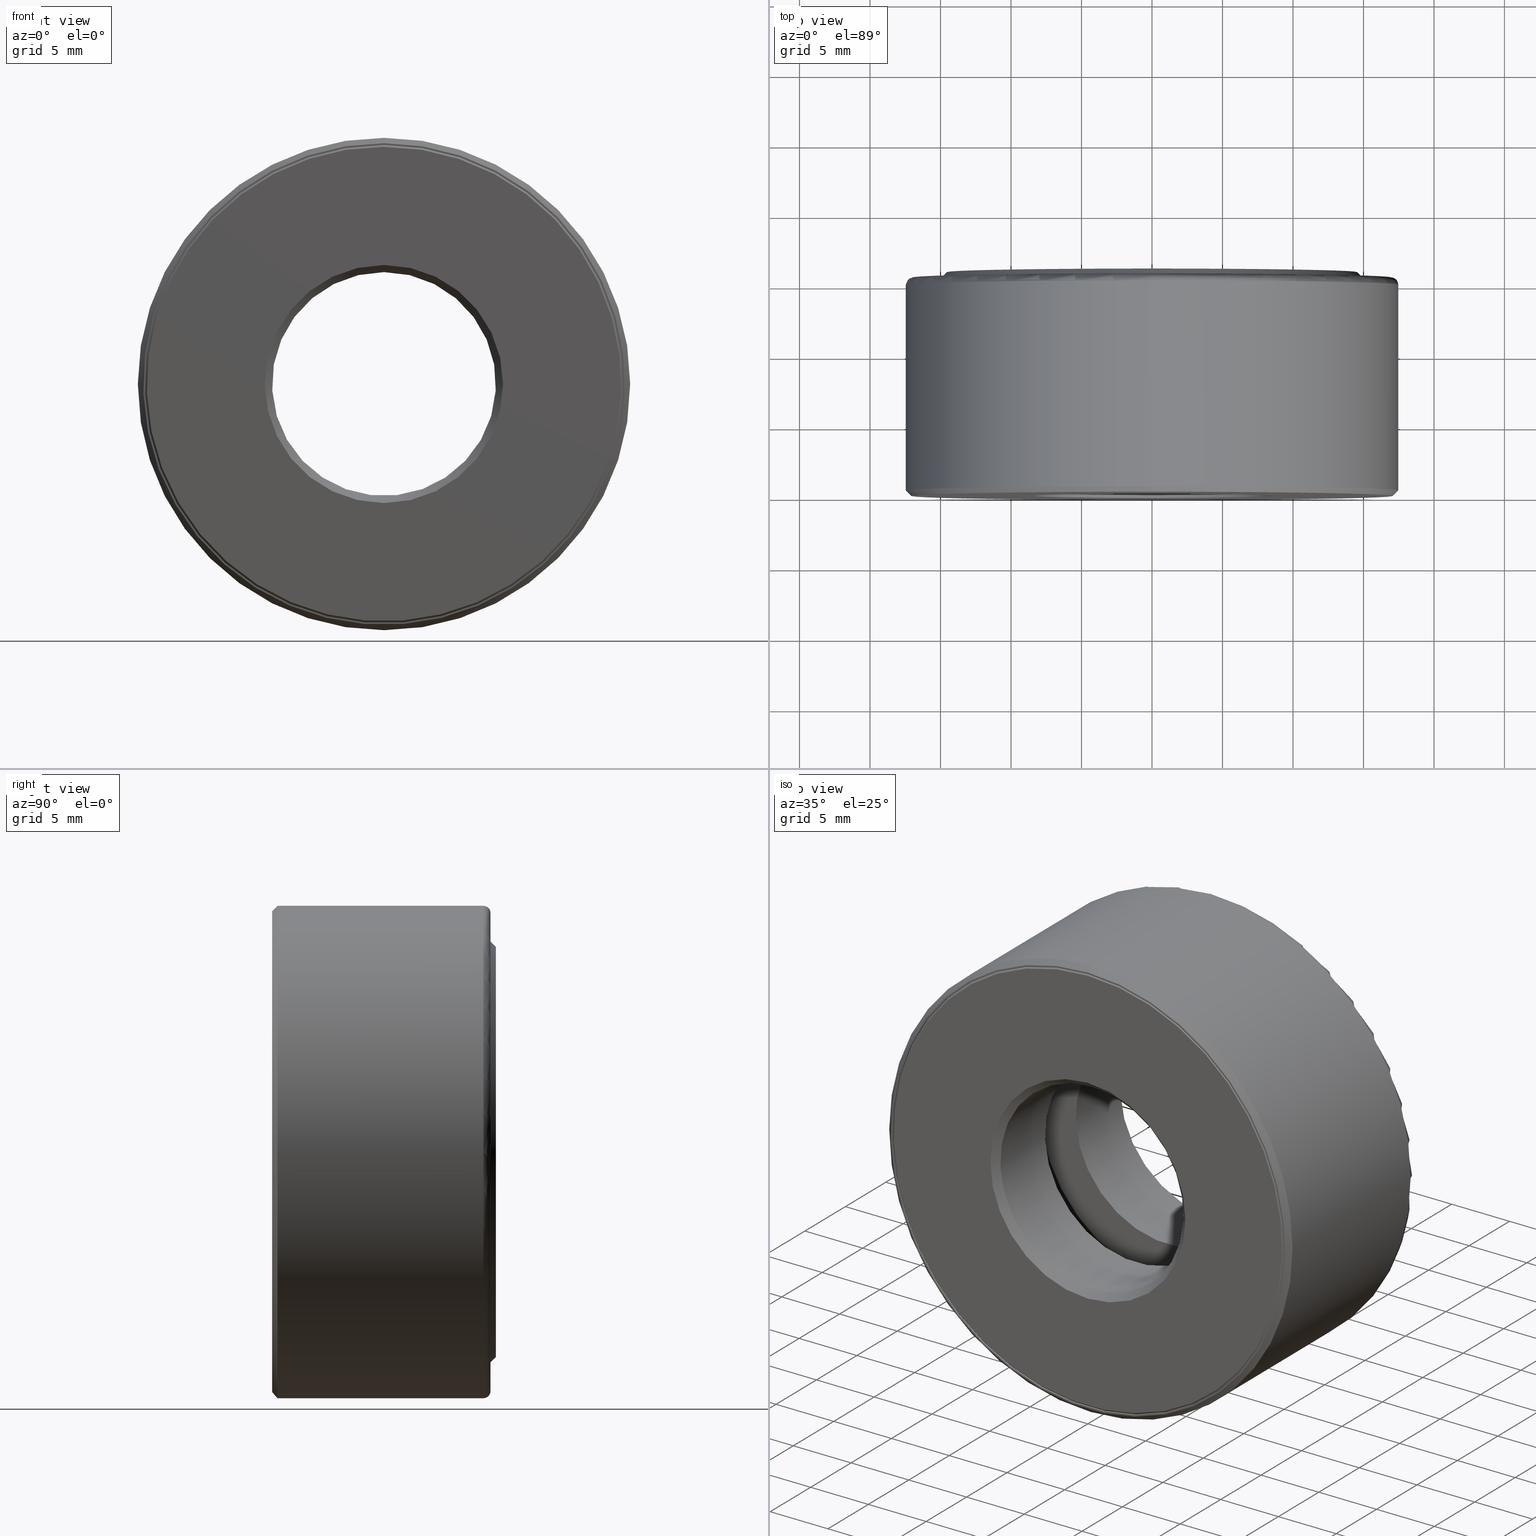
[diagram: canonical four-view strip — front | top / right | iso, engineering-drawing reading convention]
A machine part, canonical four-view strip (front | top / right | iso — engineering-drawing reading convention). The complete STEP part file that produces these views, byte-faithful:
ISO-10303-21;
HEADER;
FILE_DESCRIPTION (( 'STEP AP203' ),
    '1' );
FILE_NAME ('T-100-2.step',
    '2016-06-29T18:27:11',
    ( '' ),
    ( '' ),
    'SwSTEP 2.0',
    'SolidWorks 2016',
    '' );
FILE_SCHEMA (( 'CONFIG_CONTROL_DESIGN' ));
ENDSEC;

DATA;
#1 = VERTEX_POINT ( 'NONE', #308 ) ;
#2 = ADVANCED_FACE ( 'NONE', ( #119, #223 ), #59, .F. ) ;
#3 = DIRECTION ( 'NONE',  ( -0.0000000000000000000, 1.000000000000000000, -0.0000000000000000000 ) ) ;
#4 = CARTESIAN_POINT ( 'NONE',  ( 0.0000000000000000000, 0.01999999999999999000, 0.0000000000000000000 ) ) ;
#5 = UNCERTAINTY_MEASURE_WITH_UNIT (LENGTH_MEASURE( 1.000000000000000100E-005 ), #116, 'distance_accuracy_value', 'NONE');
#6 = EDGE_LOOP ( 'NONE', ( #175 ) ) ;
#7 = VERTEX_POINT ( 'NONE', #209 ) ;
#8 = EDGE_CURVE ( 'NONE', #401, #401, #448, .T. ) ;
#9 = VERTEX_POINT ( 'NONE', #81 ) ;
#10 = AXIS2_PLACEMENT_3D ( 'NONE', #549, #592, #593 ) ;
#11 = CARTESIAN_POINT ( 'NONE',  ( 0.0000000000000000000, 0.5900000000000000800, 0.0000000000000000000 ) ) ;
#12 = FACE_OUTER_BOUND ( 'NONE', #6, .T. ) ;
#13 = EDGE_LOOP ( 'NONE', ( #309 ) ) ;
#14 = CIRCLE ( 'NONE', #50, 0.6334999999999999500 ) ;
#15 = CALENDAR_DATE ( 2016, 29, 6 ) ;
#16 = AXIS2_PLACEMENT_3D ( 'NONE', #98, #3, #516 ) ;
#17 = CARTESIAN_POINT ( 'NONE',  ( 0.0000000000000000000, 0.6049999999999999800, 0.3125000000000000000 ) ) ;
#18 = DIRECTION ( 'NONE',  ( 0.0000000000000000000, 0.0000000000000000000, 1.000000000000000000 ) ) ;
#19 = FACE_BOUND ( 'NONE', #545, .T. ) ;
#20 = VERTEX_POINT ( 'NONE', #249 ) ;
#21 = DIRECTION ( 'NONE',  ( 0.0000000000000000000, 0.0000000000000000000, 1.000000000000000000 ) ) ;
#22 = COORDINATED_UNIVERSAL_TIME_OFFSET ( 5, 0, .BEHIND. ) ;
#23 = APPROVAL_ROLE ( '' ) ;
#24 = MANIFOLD_SOLID_BREP ( 'BALLS[2]', #94 ) ;
#25 = CARTESIAN_POINT ( 'NONE',  ( 0.0000000000000000000, 0.2374999999999999300, 0.6334999999999999500 ) ) ;
#26 = AXIS2_PLACEMENT_3D ( 'NONE', #525, #435, #351 ) ;
#27 = EDGE_LOOP ( 'NONE', ( #425 ) ) ;
#28 = APPLICATION_PROTOCOL_DEFINITION ( 'international standard', 'config_control_design', 1994, #533 ) ;
#29 = ORIENTED_EDGE ( 'NONE', *, *, #480, .F. ) ;
#30 = FACE_OUTER_BOUND ( 'NONE', #576, .T. ) ;
#31 = PERSON_AND_ORGANIZATION ( #263, #218 ) ;
#32 = CARTESIAN_POINT ( 'NONE',  ( 0.0000000000000000000, 0.5370000000000002500, 0.0000000000000000000 ) ) ;
#33 = MANIFOLD_SOLID_BREP ( 'BALLS[3]', #230 ) ;
#34 = DIRECTION ( 'NONE',  ( 0.0000000000000000000, 0.0000000000000000000, 1.000000000000000000 ) ) ;
#35 = ADVANCED_FACE ( 'NONE', ( #352, #19 ), #317, .F. ) ;
#36 = FACE_OUTER_BOUND ( 'NONE', #285, .T. ) ;
#37 = ORIENTED_EDGE ( 'NONE', *, *, #69, .T. ) ;
#38 = VERTEX_POINT ( 'NONE', #167 ) ;
#39 = DIRECTION ( 'NONE',  ( -0.0000000000000000000, 1.000000000000000000, -0.0000000000000000000 ) ) ;
#40 = AXIS2_PLACEMENT_3D ( 'NONE', #47, #185, #332 ) ;
#41 = ADVANCED_FACE ( 'NONE', ( #441, #102 ), #43, .T. ) ;
#42 = CC_DESIGN_APPROVAL ( #339, ( #356 ) ) ;
#43 = CONICAL_SURFACE ( 'NONE', #599, 0.6724999999999999900, 0.7853981633974466100 ) ;
#44 = DIRECTION ( 'NONE',  ( 0.0000000000000000000, -1.000000000000000000, 0.0000000000000000000 ) ) ;
#45 = EDGE_LOOP ( 'NONE', ( #203 ) ) ;
#46 = SPHERICAL_SURFACE ( 'NONE', #26, 0.1250000000000000300 ) ;
#47 = CARTESIAN_POINT ( 'NONE',  ( 0.0000000000000000000, 0.0000000000000000000, 0.0000000000000000000 ) ) ;
#48 = DIRECTION ( 'NONE',  ( -0.0000000000000000000, 1.000000000000000000, 0.0000000000000000000 ) ) ;
#49 = ADVANCED_FACE ( 'NONE', ( #12, #496 ), #583, .T. ) ;
#50 = AXIS2_PLACEMENT_3D ( 'NONE', #235, #194, #468 ) ;
#51 = DIRECTION ( 'NONE',  ( 0.0000000000000000000, 0.0000000000000000000, 1.000000000000000000 ) ) ;
#52 = ORIENTED_EDGE ( 'NONE', *, *, #473, .F. ) ;
#53 = DIRECTION ( 'NONE',  ( -3.491481338843132600E-015, 0.0000000000000000000, -1.000000000000000000 ) ) ;
#54 = CIRCLE ( 'NONE', #483, 0.5725000000000001200 ) ;
#55 = PERSON_AND_ORGANIZATION ( #263, #218 ) ;
#56 = DIRECTION ( 'NONE',  ( 0.0000000000000000000, 0.0000000000000000000, 1.000000000000000000 ) ) ;
#57 = CARTESIAN_POINT ( 'NONE',  ( 1.862705294272811400E-015, 0.3124999999999999400, 0.5334999999999999700 ) ) ;
#58 = DIRECTION ( 'NONE',  ( 0.0000000000000000000, 0.0000000000000000000, 1.000000000000000000 ) ) ;
#59 = CYLINDRICAL_SURFACE ( 'NONE', #446, 0.3125000000000000000 ) ;
#60 = EDGE_LOOP ( 'NONE', ( #237 ) ) ;
#61 = CONICAL_SURFACE ( 'NONE', #297, 0.6624999999999999800, 0.7853981633974499400 ) ;
#62 = AXIS2_PLACEMENT_3D ( 'NONE', #384, #470, #342 ) ;
#63 = DIRECTION ( 'NONE',  ( 0.0000000000000000000, 0.0000000000000000000, 1.000000000000000000 ) ) ;
#64 = AXIS2_PLACEMENT_3D ( 'NONE', #32, #453, #452 ) ;
#65 = DIRECTION ( 'NONE',  ( -0.0000000000000000000, 1.000000000000000000, -0.0000000000000000000 ) ) ;
#66 = FACE_BOUND ( 'NONE', #113, .T. ) ;
#67 = ORIENTED_EDGE ( 'NONE', *, *, #466, .F. ) ;
#68 = CARTESIAN_POINT ( 'NONE',  ( 0.0000000000000000000, 0.0000000000000000000, 0.0000000000000000000 ) ) ;
#69 = EDGE_CURVE ( 'NONE', #444, #444, #207, .T. ) ;
#70 = FACE_OUTER_BOUND ( 'NONE', #346, .T. ) ;
#71 = CARTESIAN_POINT ( 'NONE',  ( 0.0000000000000000000, 0.5899999999999999700, 0.6875000000000000000 ) ) ;
#72 = APPROVAL_STATUS ( 'not_yet_approved' ) ;
#73 = FACE_BOUND ( 'NONE', #487, .T. ) ;
#74 = EDGE_LOOP ( 'NONE', ( #417 ) ) ;
#75 = PERSON_AND_ORGANIZATION_ROLE ( 'classification_officer' ) ;
#76 = FACE_OUTER_BOUND ( 'NONE', #120, .T. ) ;
#77 = EDGE_CURVE ( 'NONE', #145, #145, #195, .T. ) ;
#78 = APPROVAL_STATUS ( 'not_yet_approved' ) ;
#79 = DIRECTION ( 'NONE',  ( -0.0000000000000000000, 1.000000000000000000, -0.0000000000000000000 ) ) ;
#80 = MANIFOLD_SOLID_BREP ( 'BALLS[1]', #262 ) ;
#81 = CARTESIAN_POINT ( 'NONE',  ( 0.0000000000000000000, 0.3874999999999999600, 0.6604999999999999800 ) ) ;
#82 = AXIS2_PLACEMENT_3D ( 'NONE', #459, #601, #550 ) ;
#83 = FACE_OUTER_BOUND ( 'NONE', #74, .T. ) ;
#84 = ORIENTED_EDGE ( 'NONE', *, *, #69, .F. ) ;
#85 = FACE_OUTER_BOUND ( 'NONE', #415, .T. ) ;
#86 = DIRECTION ( 'NONE',  ( 0.0000000000000000000, -1.000000000000000000, 0.0000000000000000000 ) ) ;
#87 = ORIENTED_EDGE ( 'NONE', *, *, #403, .T. ) ;
#88 = ORIENTED_EDGE ( 'NONE', *, *, #463, .T. ) ;
#89 = FACE_OUTER_BOUND ( 'NONE', #482, .T. ) ;
#90 = EDGE_CURVE ( 'NONE', #484, #484, #360, .T. ) ;
#91 = CARTESIAN_POINT ( 'NONE',  ( 3.557093741750341400E-016, 0.6250000000000000000, 0.0000000000000000000 ) ) ;
#92 = DIRECTION ( 'NONE',  ( -0.0000000000000000000, 1.000000000000000000, -0.0000000000000000000 ) ) ;
#93 = ADVANCED_FACE ( 'NONE', ( #325, #388 ), #588, .F. ) ;
#94 = CLOSED_SHELL ( 'NONE', ( #556 ) ) ;
#95 = EDGE_LOOP ( 'NONE', ( #455 ) ) ;
#96 = FACE_BOUND ( 'NONE', #215, .T. ) ;
#97 = LENGTH_MEASURE_WITH_UNIT ( LENGTH_MEASURE( 0.02539999999999999900 ), #161 );
#98 = CARTESIAN_POINT ( 'NONE',  ( 0.0000000000000000000, 0.3124999999999999400, 0.0000000000000000000 ) ) ;
#99 = EDGE_CURVE ( 'NONE', #272, #272, #553, .T. ) ;
#100 = DIRECTION ( 'NONE',  ( -0.0000000000000000000, 1.000000000000000000, -0.0000000000000000000 ) ) ;
#101 = DIRECTION ( 'NONE',  ( 0.0000000000000000000, 0.0000000000000000000, 1.000000000000000000 ) ) ;
#102 = FACE_BOUND ( 'NONE', #27, .T. ) ;
#103 = AXIS2_PLACEMENT_3D ( 'NONE', #555, #92, #413 ) ;
#104 = CC_DESIGN_APPROVAL ( #457, ( #428 ) ) ;
#105 = DIRECTION ( 'NONE',  ( 0.0000000000000000000, 0.0000000000000000000, 1.000000000000000000 ) ) ;
#106 = EDGE_LOOP ( 'NONE', ( #520 ) ) ;
#107 = ORIENTED_EDGE ( 'NONE', *, *, #289, .T. ) ;
#108 = FACE_OUTER_BOUND ( 'NONE', #507, .T. ) ;
#109 = AXIS2_PLACEMENT_3D ( 'NONE', #180, #373, #501 ) ;
#110 = DIRECTION ( 'NONE',  ( 0.0000000000000000000, 0.0000000000000000000, -1.000000000000000000 ) ) ;
#111 = DIRECTION ( 'NONE',  ( -0.0000000000000000000, 1.000000000000000000, -0.0000000000000000000 ) ) ;
#112 = CC_DESIGN_PERSON_AND_ORGANIZATION_ASSIGNMENT ( #532, #445, ( #428 ) ) ;
#113 = EDGE_LOOP ( 'NONE', ( #568 ) ) ;
#114 = VERTEX_POINT ( 'NONE', #71 ) ;
#115 = LOCAL_TIME ( 14, 27, 11.00000000000000000, #410 ) ;
#116 =( CONVERSION_BASED_UNIT ( 'INCH', #97 ) LENGTH_UNIT ( ) NAMED_UNIT ( #420 ) );
#117 = AXIS2_PLACEMENT_3D ( 'NONE', #546, #86, #315 ) ;
#118 = CARTESIAN_POINT ( 'NONE',  ( 0.0000000000000000000, 3.414809992080329000E-017, 0.3325000000000000200 ) ) ;
#119 = FACE_OUTER_BOUND ( 'NONE', #340, .T. ) ;
#120 = EDGE_LOOP ( 'NONE', ( #208 ) ) ;
#121 = FACE_OUTER_BOUND ( 'NONE', #190, .T. ) ;
#122 = CARTESIAN_POINT ( 'NONE',  ( 0.0000000000000000000, 0.0000000000000000000, 0.0000000000000000000 ) ) ;
#123 = APPROVAL_PERSON_ORGANIZATION ( #139, #457, #357 ) ;
#124 = CARTESIAN_POINT ( 'NONE',  ( 0.0000000000000000000, 0.0000000000000000000, 0.0000000000000000000 ) ) ;
#125 = EDGE_LOOP ( 'NONE', ( #594 ) ) ;
#126 = DIRECTION ( 'NONE',  ( -0.0000000000000000000, 1.000000000000000000, -0.0000000000000000000 ) ) ;
#127 = VERTEX_POINT ( 'NONE', #314 ) ;
#128 = VERTEX_POINT ( 'NONE', #440 ) ;
#129 = DIRECTION ( 'NONE',  ( 0.0000000000000000000, 0.0000000000000000000, 1.000000000000000000 ) ) ;
#130 = ADVANCED_FACE ( 'NONE', ( #73, #462 ), #177, .T. ) ;
#131 = AXIS2_PLACEMENT_3D ( 'NONE', #141, #44, #605 ) ;
#132 = CARTESIAN_POINT ( 'NONE',  ( 0.0000000000000000000, 0.5900000000000000800, 0.0000000000000000000 ) ) ;
#133 = ADVANCED_FACE ( 'NONE', ( #299, #83 ), #447, .F. ) ;
#134 = CARTESIAN_POINT ( 'NONE',  ( 0.0000000000000000000, 0.5900000000000000800, 0.0000000000000000000 ) ) ;
#135 = ORIENTED_EDGE ( 'NONE', *, *, #491, .T. ) ;
#136 = ORIENTED_EDGE ( 'NONE', *, *, #8, .F. ) ;
#137 = CARTESIAN_POINT ( 'NONE',  ( 0.0000000000000000000, 0.0000000000000000000, 0.0000000000000000000 ) ) ;
#138 = CYLINDRICAL_SURFACE ( 'NONE', #268, 0.6075000000000000400 ) ;
#139 = PERSON_AND_ORGANIZATION ( #263, #218 ) ;
#140 = MANIFOLD_SOLID_BREP ( 'Revolve2[1]', #475 ) ;
#141 = CARTESIAN_POINT ( 'NONE',  ( 0.0000000000000000000, 0.6100000000000001000, 0.0000000000000000000 ) ) ;
#142 = AXIS2_PLACEMENT_3D ( 'NONE', #4, #238, #101 ) ;
#143 = CARTESIAN_POINT ( 'NONE',  ( 0.0000000000000000000, 0.3874999999999999600, 0.0000000000000000000 ) ) ;
#144 = ORIENTED_EDGE ( 'NONE', *, *, #99, .F. ) ;
#145 = VERTEX_POINT ( 'NONE', #578 ) ;
#146 = COORDINATED_UNIVERSAL_TIME_OFFSET ( 5, 0, .BEHIND. ) ;
#147 = CARTESIAN_POINT ( 'NONE',  ( 0.0000000000000000000, -4.867964418107738000E-017, 0.0000000000000000000 ) ) ;
#148 = EDGE_LOOP ( 'NONE', ( #214 ) ) ;
#149 = AXIS2_PLACEMENT_3D ( 'NONE', #557, #499, #598 ) ;
#150 = ORIENTED_EDGE ( 'NONE', *, *, #77, .T. ) ;
#151 = CARTESIAN_POINT ( 'NONE',  ( 0.0000000000000000000, -4.908789363615472800E-017, 0.6724999999999999900 ) ) ;
#152 = FACE_OUTER_BOUND ( 'NONE', #376, .T. ) ;
#153 = DIRECTION ( 'NONE',  ( -0.0000000000000000000, 1.000000000000000000, -0.0000000000000000000 ) ) ;
#154 = DIRECTION ( 'NONE',  ( 0.0000000000000000000, 0.0000000000000000000, 1.000000000000000000 ) ) ;
#155 = CARTESIAN_POINT ( 'NONE',  ( 0.0000000000000000000, 0.6250000000000000000, 0.0000000000000000000 ) ) ;
#156 = FACE_OUTER_BOUND ( 'NONE', #537, .T. ) ;
#157 = CC_DESIGN_PERSON_AND_ORGANIZATION_ASSIGNMENT ( #295, #259, ( #359 ) ) ;
#158 = ORIENTED_EDGE ( 'NONE', *, *, #466, .T. ) ;
#159 = VERTEX_POINT ( 'NONE', #258 ) ;
#160 =( NAMED_UNIT ( * ) SI_UNIT ( $, .STERADIAN. ) SOLID_ANGLE_UNIT ( ) );
#161 =( LENGTH_UNIT ( ) NAMED_UNIT ( * ) SI_UNIT ( $, .METRE. ) );
#162 = EDGE_CURVE ( 'NONE', #368, #368, #543, .T. ) ;
#163 = AXIS2_PLACEMENT_3D ( 'NONE', #567, #562, #379 ) ;
#164 = PERSON_AND_ORGANIZATION_ROLE ( 'creator' ) ;
#165 = EDGE_CURVE ( 'NONE', #20, #20, #283, .T. ) ;
#166 = EDGE_LOOP ( 'NONE', ( #196 ) ) ;
#167 = CARTESIAN_POINT ( 'NONE',  ( 0.0000000000000000000, 0.3874999999999999600, 0.6334999999999999500 ) ) ;
#168 = EDGE_LOOP ( 'NONE', ( #87 ) ) ;
#169 = CIRCLE ( 'NONE', #515, 0.6604999999999999800 ) ;
#170 = APPROVAL_DATE_TIME ( #597, #339 ) ;
#171 = DIRECTION ( 'NONE',  ( 0.0000000000000000000, -1.000000000000000000, 0.0000000000000000000 ) ) ;
#172 = AXIS2_PLACEMENT_3D ( 'NONE', #122, #79, #129 ) ;
#173 = DIRECTION ( 'NONE',  ( -0.0000000000000000000, 1.000000000000000000, -0.0000000000000000000 ) ) ;
#174 = FACE_BOUND ( 'NONE', #406, .T. ) ;
#175 = ORIENTED_EDGE ( 'NONE', *, *, #8, .T. ) ;
#176 = FACE_OUTER_BOUND ( 'NONE', #184, .T. ) ;
#177 = PLANE ( 'NONE',  #560 ) ;
#178 = CALENDAR_DATE ( 2016, 29, 6 ) ;
#179 = AXIS2_PLACEMENT_3D ( 'NONE', #343, #481, #110 ) ;
#180 = CARTESIAN_POINT ( 'NONE',  ( -0.5334999999999999700, 0.3124999999999999400, 0.0000000000000000000 ) ) ;
#181 = ADVANCED_FACE ( 'NONE', ( #529, #36 ), #511, .T. ) ;
#182 = EDGE_LOOP ( 'NONE', ( #144 ) ) ;
#183 = DIRECTION ( 'NONE',  ( -0.0000000000000000000, 1.000000000000000000, 0.0000000000000000000 ) ) ;
#184 = EDGE_LOOP ( 'NONE', ( #67 ) ) ;
#185 = DIRECTION ( 'NONE',  ( -0.0000000000000000000, 1.000000000000000000, -0.0000000000000000000 ) ) ;
#186 = AXIS2_PLACEMENT_3D ( 'NONE', #312, #126, #212 ) ;
#187 = DIRECTION ( 'NONE',  ( 0.0000000000000000000, 0.0000000000000000000, 1.000000000000000000 ) ) ;
#188 = DIRECTION ( 'NONE',  ( 0.0000000000000000000, 0.0000000000000000000, 1.000000000000000000 ) ) ;
#189 = FACE_OUTER_BOUND ( 'NONE', #392, .T. ) ;
#190 = EDGE_LOOP ( 'NONE', ( #328 ) ) ;
#191 = CIRCLE ( 'NONE', #365, 0.3325000000000000200 ) ;
#192 = PERSON_AND_ORGANIZATION ( #263, #218 ) ;
#193 = AXIS2_PLACEMENT_3D ( 'NONE', #380, #100, #51 ) ;
#194 = DIRECTION ( 'NONE',  ( -0.0000000000000000000, 1.000000000000000000, -0.0000000000000000000 ) ) ;
#195 = CIRCLE ( 'NONE', #396, 0.4334999999999998900 ) ;
#196 = ORIENTED_EDGE ( 'NONE', *, *, #165, .T. ) ;
#197 = FACE_OUTER_BOUND ( 'NONE', #106, .T. ) ;
#198 = DIRECTION ( 'NONE',  ( 0.0000000000000000000, -1.000000000000000000, 0.0000000000000000000 ) ) ;
#199 = CC_DESIGN_DATE_AND_TIME_ASSIGNMENT ( #500, #303, ( #228 ) ) ;
#200 = CARTESIAN_POINT ( 'NONE',  ( 0.0000000000000000000, 0.3874999999999999600, 0.0000000000000000000 ) ) ;
#201 = EDGE_LOOP ( 'NONE', ( #29 ) ) ;
#202 = AXIS2_PLACEMENT_3D ( 'NONE', #467, #288, #510 ) ;
#203 = ORIENTED_EDGE ( 'NONE', *, *, #544, .F. ) ;
#204 = FACE_OUTER_BOUND ( 'NONE', #201, .T. ) ;
#205 = DIRECTION ( 'NONE',  ( 0.0000000000000000000, 0.0000000000000000000, 1.000000000000000000 ) ) ;
#206 = AXIS2_PLACEMENT_3D ( 'NONE', #57, #284, #53 ) ;
#207 = CIRCLE ( 'NONE', #589, 0.6674999999999998700 ) ;
#208 = ORIENTED_EDGE ( 'NONE', *, *, #473, .T. ) ;
#209 = CARTESIAN_POINT ( 'NONE',  ( 0.0000000000000000000, 0.01999999999999999000, 0.3124999999999999400 ) ) ;
#210 = FACE_BOUND ( 'NONE', #575, .T. ) ;
#211 = MECHANICAL_CONTEXT ( 'NONE', #533, 'mechanical' ) ;
#212 = DIRECTION ( 'NONE',  ( 0.0000000000000000000, 0.0000000000000000000, 1.000000000000000000 ) ) ;
#213 = DIRECTION ( 'NONE',  ( 0.0000000000000000000, 0.0000000000000000000, 1.000000000000000000 ) ) ;
#214 = ORIENTED_EDGE ( 'NONE', *, *, #517, .T. ) ;
#215 = EDGE_LOOP ( 'NONE', ( #278 ) ) ;
#216 = DIRECTION ( 'NONE',  ( 0.0000000000000000000, 0.0000000000000000000, 1.000000000000000000 ) ) ;
#217 = FACE_OUTER_BOUND ( 'NONE', #443, .T. ) ;
#218 = ORGANIZATION ( 'UNSPECIFIED', 'UNSPECIFIED', '' ) ;
#219 = DIRECTION ( 'NONE',  ( -0.0000000000000000000, 1.000000000000000000, 0.0000000000000000000 ) ) ;
#220 = ADVANCED_FACE ( 'NONE', ( #561, #424 ), #369, .F. ) ;
#221 = DIRECTION ( 'NONE',  ( 0.0000000000000000000, 0.0000000000000000000, 1.000000000000000000 ) ) ;
#222 = PLANE ( 'NONE',  #313 ) ;
#223 = FACE_OUTER_BOUND ( 'NONE', #95, .T. ) ;
#224 = CC_DESIGN_PERSON_AND_ORGANIZATION_ASSIGNMENT ( #55, #252, ( #228 ) ) ;
#225 = TOROIDAL_SURFACE ( 'NONE', #385, 0.5334999999999999700, 0.1250000000000000300 ) ;
#226 = AXIS2_PLACEMENT_3D ( 'NONE', #275, #421, #552 ) ;
#227 = DIRECTION ( 'NONE',  ( 0.0000000000000000000, 0.0000000000000000000, 1.000000000000000000 ) ) ;
#228 = PRODUCT_DEFINITION ( 'UNKNOWN', '', #428, #304 ) ;
#229 = ORIENTED_EDGE ( 'NONE', *, *, #397, .T. ) ;
#230 = CLOSED_SHELL ( 'NONE', ( #494 ) ) ;
#231 = FACE_BOUND ( 'NONE', #13, .T. ) ;
#232 = ADVANCED_FACE ( 'NONE', ( #66, #156 ), #280, .F. ) ;
#233 = CALENDAR_DATE ( 2016, 29, 6 ) ;
#234 = AXIS2_PLACEMENT_3D ( 'NONE', #11, #240, #509 ) ;
#235 = CARTESIAN_POINT ( 'NONE',  ( 0.0000000000000000000, 0.3874999999999999600, 0.0000000000000000000 ) ) ;
#236 = AXIS2_PLACEMENT_3D ( 'NONE', #570, #291, #386 ) ;
#237 = ORIENTED_EDGE ( 'NONE', *, *, #162, .F. ) ;
#238 = DIRECTION ( 'NONE',  ( -0.0000000000000000000, 1.000000000000000000, -0.0000000000000000000 ) ) ;
#239 = LOCAL_TIME ( 14, 27, 11.00000000000000000, #370 ) ;
#240 = DIRECTION ( 'NONE',  ( -0.0000000000000000000, 1.000000000000000000, -0.0000000000000000000 ) ) ;
#241 = AXIS2_PLACEMENT_3D ( 'NONE', #323, #422, #330 ) ;
#242 = CARTESIAN_POINT ( 'NONE',  ( -6.702622918339498200E-017, 0.2374999999999999900, 0.0000000000000000000 ) ) ;
#243 = ORIENTED_EDGE ( 'NONE', *, *, #573, .T. ) ;
#244 = ORIENTED_EDGE ( 'NONE', *, *, #403, .F. ) ;
#245 = FACE_OUTER_BOUND ( 'NONE', #125, .T. ) ;
#246 = CARTESIAN_POINT ( 'NONE',  ( 0.0000000000000000000, 0.5370000000000002500, 0.6604999999999999800 ) ) ;
#247 = LOCAL_TIME ( 14, 27, 11.00000000000000000, #362 ) ;
#248 = MANIFOLD_SOLID_BREP ( 'Revolve3', #361 ) ;
#249 = CARTESIAN_POINT ( 'NONE',  ( 0.0000000000000000000, 0.5900000000000000800, 0.6674999999999998700 ) ) ;
#250 = DIRECTION ( 'NONE',  ( -0.0000000000000000000, 1.000000000000000000, -0.0000000000000000000 ) ) ;
#251 = ORIENTED_EDGE ( 'NONE', *, *, #573, .F. ) ;
#252 = PERSON_AND_ORGANIZATION_ROLE ( 'creator' ) ;
#253 = VERTEX_POINT ( 'NONE', #349 ) ;
#254 = DATE_AND_TIME ( #178, #239 ) ;
#255 =( NAMED_UNIT ( * ) PLANE_ANGLE_UNIT ( ) SI_UNIT ( $, .RADIAN. ) );
#256 = CC_DESIGN_PERSON_AND_ORGANIZATION_ASSIGNMENT ( #192, #75, ( #356 ) ) ;
#257 = AXIS2_PLACEMENT_3D ( 'NONE', #492, #495, #221 ) ;
#258 = CARTESIAN_POINT ( 'NONE',  ( 0.0000000000000000000, 0.6100000000000001000, 0.6075000000000000400 ) ) ;
#259 = PERSON_AND_ORGANIZATION_ROLE ( 'design_owner' ) ;
#260 = DIRECTION ( 'NONE',  ( 0.0000000000000000000, -0.0000000000000000000, -1.000000000000000000 ) ) ;
#261 = EDGE_LOOP ( 'NONE', ( #293 ) ) ;
#262 = CLOSED_SHELL ( 'NONE', ( #408 ) ) ;
#263 = PERSON ( 'UNSPECIFIED', 'UNSPECIFIED', 'UNSPECIFIED', ('UNSPECIFIED'), ('UNSPECIFIED'), ('UNSPECIFIED') ) ;
#264 = CIRCLE ( 'NONE', #234, 0.6075000000000000400 ) ;
#265 = CARTESIAN_POINT ( 'NONE',  ( 0.0000000000000000000, 0.3874999999999999600, 0.0000000000000000000 ) ) ;
#266 = LOCAL_TIME ( 14, 27, 11.00000000000000000, #146 ) ;
#267 = CARTESIAN_POINT ( 'NONE',  ( 0.0000000000000000000, 0.2374999999999999600, 0.0000000000000000000 ) ) ;
#268 = AXIS2_PLACEMENT_3D ( 'NONE', #431, #338, #188 ) ;
#269 = EDGE_CURVE ( 'NONE', #498, #498, #405, .T. ) ;
#270 = EDGE_LOOP ( 'NONE', ( #429 ) ) ;
#271 = AXIS2_PLACEMENT_3D ( 'NONE', #411, #171, #260 ) ;
#272 = VERTEX_POINT ( 'NONE', #151 ) ;
#273 = APPROVAL_DATE_TIME ( #254, #371 ) ;
#274 = DIRECTION ( 'NONE',  ( 0.0000000000000000000, 0.0000000000000000000, 1.000000000000000000 ) ) ;
#275 = CARTESIAN_POINT ( 'NONE',  ( 0.0000000000000000000, 0.5899999999999999700, 0.0000000000000000000 ) ) ;
#276 = EDGE_LOOP ( 'NONE', ( #505 ) ) ;
#277 = ADVANCED_FACE ( 'NONE', ( #189, #174 ), #577, .F. ) ;
#278 = ORIENTED_EDGE ( 'NONE', *, *, #367, .T. ) ;
#279 = CIRCLE ( 'NONE', #461, 0.3325000000000000700 ) ;
#280 = PLANE ( 'NONE',  #131 ) ;
#281 = ADVANCED_FACE ( 'NONE', ( #450, #409 ), #465, .T. ) ;
#282 = CARTESIAN_POINT ( 'NONE',  ( 0.0000000000000000000, 0.6249999999999998900, 0.0000000000000000000 ) ) ;
#283 = CIRCLE ( 'NONE', #454, 0.6674999999999998700 ) ;
#284 = DIRECTION ( 'NONE',  ( -1.000000000000000000, 0.0000000000000000000, 3.491481338843132600E-015 ) ) ;
#285 = EDGE_LOOP ( 'NONE', ( #136 ) ) ;
#286 = VERTEX_POINT ( 'NONE', #486 ) ;
#287 = APPROVAL_PERSON_ORGANIZATION ( #478, #339, #398 ) ;
#288 = DIRECTION ( 'NONE',  ( -0.0000000000000000000, 1.000000000000000000, -0.0000000000000000000 ) ) ;
#289 = EDGE_CURVE ( 'NONE', #114, #114, #531, .T. ) ;
#290 = AXIS2_PLACEMENT_3D ( 'NONE', #143, #566, #56 ) ;
#291 = DIRECTION ( 'NONE',  ( 1.000000000000000000, 0.0000000000000000000, -1.047444401652940000E-014 ) ) ;
#292 = ORIENTED_EDGE ( 'NONE', *, *, #162, .T. ) ;
#293 = ORIENTED_EDGE ( 'NONE', *, *, #528, .T. ) ;
#294 = FACE_BOUND ( 'NONE', #168, .T. ) ;
#295 = PERSON_AND_ORGANIZATION ( #263, #218 ) ;
#296 = CARTESIAN_POINT ( 'NONE',  ( 0.0000000000000000000, 0.3874999999999999600, 0.0000000000000000000 ) ) ;
#297 = AXIS2_PLACEMENT_3D ( 'NONE', #391, #522, #390 ) ;
#298 = CARTESIAN_POINT ( 'NONE',  ( 0.0000000000000000000, 0.3874999999999999600, 0.3125000000000000000 ) ) ;
#299 = FACE_BOUND ( 'NONE', #366, .T. ) ;
#300 = EDGE_LOOP ( 'NONE', ( #135 ) ) ;
#301 = FACE_OUTER_BOUND ( 'NONE', #563, .T. ) ;
#302 = VERTEX_POINT ( 'NONE', #118 ) ;
#303 = DATE_TIME_ROLE ( 'creation_date' ) ;
#304 = DESIGN_CONTEXT ( 'detailed design', #355, 'design' ) ;
#305 = PRODUCT_RELATED_PRODUCT_CATEGORY ( 'detail', '', ( #359 ) ) ;
#306 = CARTESIAN_POINT ( 'NONE',  ( 0.0000000000000000000, 0.5900000000000000800, 0.6075000000000000400 ) ) ;
#307 = ORIENTED_EDGE ( 'NONE', *, *, #528, .F. ) ;
#308 = CARTESIAN_POINT ( 'NONE',  ( 0.0000000000000000000, 0.2374999999999999900, 0.3125000000000000000 ) ) ;
#309 = ORIENTED_EDGE ( 'NONE', *, *, #480, .T. ) ;
#310 = FACE_OUTER_BOUND ( 'NONE', #464, .T. ) ;
#311 = CARTESIAN_POINT ( 'NONE',  ( 0.0000000000000000000, 0.6250000000000000000, 0.5725000000000001200 ) ) ;
#312 = CARTESIAN_POINT ( 'NONE',  ( 0.0000000000000000000, -4.908789363615472800E-017, 0.0000000000000000000 ) ) ;
#313 = AXIS2_PLACEMENT_3D ( 'NONE', #91, #48, #460 ) ;
#314 = CARTESIAN_POINT ( 'NONE',  ( 0.0000000000000000000, 0.6249999999999998900, 0.3325000000000000700 ) ) ;
#315 = DIRECTION ( 'NONE',  ( 0.0000000000000000000, 0.0000000000000000000, -1.000000000000000000 ) ) ;
#316 = PRODUCT_DEFINITION_SHAPE ( 'NONE', 'NONE',  #228 ) ;
#317 = PLANE ( 'NONE',  #524 ) ;
#318 = ORIENTED_EDGE ( 'NONE', *, *, #90, .F. ) ;
#319 = FACE_OUTER_BOUND ( 'NONE', #590, .T. ) ;
#320 = DIRECTION ( 'NONE',  ( -0.0000000000000000000, 1.000000000000000000, -0.0000000000000000000 ) ) ;
#321 = CC_DESIGN_DATE_AND_TIME_ASSIGNMENT ( #579, #442, ( #356 ) ) ;
#322 = DIRECTION ( 'NONE',  ( 0.0000000000000000000, -1.000000000000000000, 0.0000000000000000000 ) ) ;
#323 = CARTESIAN_POINT ( 'NONE',  ( -7.040798701296951900E-033, -6.936332796413175600E-018, 0.0000000000000000000 ) ) ;
#324 = ADVANCED_FACE ( 'NONE', ( ), #341, .T. ) ;
#325 = FACE_OUTER_BOUND ( 'NONE', #45, .T. ) ;
#326 = PLANE ( 'NONE',  #337 ) ;
#327 = AXIS2_PLACEMENT_3D ( 'NONE', #242, #198, #519 ) ;
#328 = ORIENTED_EDGE ( 'NONE', *, *, #600, .T. ) ;
#329 = TOROIDAL_SURFACE ( 'NONE', #193, 0.6674999999999998700, 0.02000000000000002500 ) ;
#330 = DIRECTION ( 'NONE',  ( 0.0000000000000000000, 0.0000000000000000000, 1.000000000000000000 ) ) ;
#331 = CC_DESIGN_PERSON_AND_ORGANIZATION_ASSIGNMENT ( #565, #164, ( #428 ) ) ;
#332 = DIRECTION ( 'NONE',  ( 0.0000000000000000000, 0.0000000000000000000, 1.000000000000000000 ) ) ;
#333 = ADVANCED_FACE ( 'NONE', ( #152, #334 ), #222, .T. ) ;
#334 = FACE_BOUND ( 'NONE', #449, .T. ) ;
#335 = APPROVAL_DATE_TIME ( #490, #457 ) ;
#336 = DIRECTION ( 'NONE',  ( 0.0000000000000000000, 0.0000000000000000000, 1.000000000000000000 ) ) ;
#337 = AXIS2_PLACEMENT_3D ( 'NONE', #132, #183, #227 ) ;
#338 = DIRECTION ( 'NONE',  ( -0.0000000000000000000, 1.000000000000000000, -0.0000000000000000000 ) ) ;
#339 = APPROVAL ( #78, 'UNSPECIFIED' ) ;
#340 = EDGE_LOOP ( 'NONE', ( #535 ) ) ;
#341 = SPHERICAL_SURFACE ( 'NONE', #109, 0.1250000000000000300 ) ;
#342 = DIRECTION ( 'NONE',  ( 0.0000000000000000000, 0.0000000000000000000, 1.000000000000000000 ) ) ;
#343 = CARTESIAN_POINT ( 'NONE',  ( 0.0000000000000000000, 0.01999999999999999000, 0.0000000000000000000 ) ) ;
#344 = AXIS2_PLACEMENT_3D ( 'NONE', #137, #559, #187 ) ;
#345 = CARTESIAN_POINT ( 'NONE',  ( 0.0000000000000000000, 0.3124999999999999400, 0.0000000000000000000 ) ) ;
#346 = EDGE_LOOP ( 'NONE', ( #84 ) ) ;
#347 = ORIENTED_EDGE ( 'NONE', *, *, #394, .T. ) ;
#348 = FACE_BOUND ( 'NONE', #400, .T. ) ;
#349 = CARTESIAN_POINT ( 'NONE',  ( 0.0000000000000000000, -4.802076551362963400E-017, 0.6624999999999999800 ) ) ;
#350 = CC_DESIGN_SECURITY_CLASSIFICATION ( #356, ( #428 ) ) ;
#351 = DIRECTION ( 'NONE',  ( -1.000000000000000000, 0.0000000000000000000, 6.982962677686265100E-015 ) ) ;
#352 = FACE_OUTER_BOUND ( 'NONE', #182, .T. ) ;
#353 = FACE_OUTER_BOUND ( 'NONE', #300, .T. ) ;
#354 = AXIS2_PLACEMENT_3D ( 'NONE', #387, #111, #63 ) ;
#355 = APPLICATION_CONTEXT ( 'configuration controlled 3d designs of mechanical parts and assemblies' ) ;
#356 = SECURITY_CLASSIFICATION ( '', '', #402 ) ;
#357 = APPROVAL_ROLE ( '' ) ;
#358 = DIRECTION ( 'NONE',  ( -0.0000000000000000000, 1.000000000000000000, -0.0000000000000000000 ) ) ;
#359 = PRODUCT ( 'T-100-2', 'T-100-2', '', ( #211 ) ) ;
#360 = CIRCLE ( 'NONE', #10, 0.3125000000000000000 ) ;
#361 = CLOSED_SHELL ( 'NONE', ( #324 ) ) ;
#362 = COORDINATED_UNIVERSAL_TIME_OFFSET ( 5, 0, .BEHIND. ) ;
#363 = CARTESIAN_POINT ( 'NONE',  ( 0.0000000000000000000, 0.6100000000000001000, 0.0000000000000000000 ) ) ;
#364 = ADVANCED_FACE ( 'NONE', ( #30, #76 ), #437, .F. ) ;
#365 = AXIS2_PLACEMENT_3D ( 'NONE', #472, #250, #393 ) ;
#366 = EDGE_LOOP ( 'NONE', ( #469 ) ) ;
#367 = EDGE_CURVE ( 'NONE', #253, #253, #571, .T. ) ;
#368 = VERTEX_POINT ( 'NONE', #432 ) ;
#369 = PLANE ( 'NONE',  #241 ) ;
#370 = COORDINATED_UNIVERSAL_TIME_OFFSET ( 5, 0, .BEHIND. ) ;
#371 = APPROVAL ( #586, 'UNSPECIFIED' ) ;
#372 = ADVANCED_FACE ( 'NONE', ( #89, #121 ), #521, .F. ) ;
#373 = DIRECTION ( 'NONE',  ( 0.0000000000000000000, 0.0000000000000000000, -1.000000000000000000 ) ) ;
#374 = ADVANCED_FACE ( 'NONE', ( #310, #231 ), #326, .F. ) ;
#375 = AXIS2_PLACEMENT_3D ( 'NONE', #456, #503, #418 ) ;
#376 = EDGE_LOOP ( 'NONE', ( #243 ) ) ;
#377 = SPHERICAL_SURFACE ( 'NONE', #206, 0.1250000000000000300 ) ;
#378 = LOCAL_TIME ( 14, 27, 11.00000000000000000, #22 ) ;
#379 = DIRECTION ( 'NONE',  ( 0.0000000000000000000, 0.0000000000000000000, 1.000000000000000000 ) ) ;
#380 = CARTESIAN_POINT ( 'NONE',  ( 0.0000000000000000000, 0.5900000000000000800, 0.0000000000000000000 ) ) ;
#381 = ORIENTED_EDGE ( 'NONE', *, *, #600, .F. ) ;
#382 = VERTEX_POINT ( 'NONE', #534 ) ;
#383 = CALENDAR_DATE ( 2016, 29, 6 ) ;
#384 = CARTESIAN_POINT ( 'NONE',  ( 0.0000000000000000000, 0.2374999999999999300, 0.0000000000000000000 ) ) ;
#385 = AXIS2_PLACEMENT_3D ( 'NONE', #345, #153, #18 ) ;
#386 = DIRECTION ( 'NONE',  ( 1.047444401652940000E-014, 0.0000000000000000000, 1.000000000000000000 ) ) ;
#387 = CARTESIAN_POINT ( 'NONE',  ( 0.0000000000000000000, 0.2374999999999998800, 0.0000000000000000000 ) ) ;
#388 = FACE_OUTER_BOUND ( 'NONE', #166, .T. ) ;
#389 = TOROIDAL_SURFACE ( 'NONE', #16, 0.5334999999999999700, 0.1250000000000000300 ) ;
#390 = DIRECTION ( 'NONE',  ( 0.0000000000000000000, 0.0000000000000000000, 1.000000000000000000 ) ) ;
#391 = CARTESIAN_POINT ( 'NONE',  ( 0.0000000000000000000, -4.802076551362963400E-017, 0.0000000000000000000 ) ) ;
#392 = EDGE_LOOP ( 'NONE', ( #347 ) ) ;
#393 = DIRECTION ( 'NONE',  ( 0.0000000000000000000, 0.0000000000000000000, 1.000000000000000000 ) ) ;
#394 = EDGE_CURVE ( 'NONE', #127, #127, #279, .T. ) ;
#395 = VERTEX_POINT ( 'NONE', #311 ) ;
#396 = AXIS2_PLACEMENT_3D ( 'NONE', #267, #320, #34 ) ;
#397 = EDGE_CURVE ( 'NONE', #382, #382, #564, .T. ) ;
#398 = APPROVAL_ROLE ( '' ) ;
#399 = EDGE_LOOP ( 'NONE', ( #307 ) ) ;
#400 = EDGE_LOOP ( 'NONE', ( #381 ) ) ;
#401 = VERTEX_POINT ( 'NONE', #246 ) ;
#402 = SECURITY_CLASSIFICATION_LEVEL ( 'unclassified' ) ;
#403 = EDGE_CURVE ( 'NONE', #7, #7, #477, .T. ) ;
#404 = CARTESIAN_POINT ( 'NONE',  ( 0.0000000000000000000, -4.908789363615472800E-017, 0.0000000000000000000 ) ) ;
#405 = CIRCLE ( 'NONE', #149, 0.3125000000000000000 ) ;
#406 = EDGE_LOOP ( 'NONE', ( #318 ) ) ;
#407 = DIRECTION ( 'NONE',  ( 0.0000000000000000000, 0.0000000000000000000, 1.000000000000000000 ) ) ;
#408 = ADVANCED_FACE ( 'NONE', ( ), #377, .T. ) ;
#409 = FACE_OUTER_BOUND ( 'NONE', #603, .T. ) ;
#410 = COORDINATED_UNIVERSAL_TIME_OFFSET ( 5, 0, .BEHIND. ) ;
#411 = CARTESIAN_POINT ( 'NONE',  ( -4.770690430112253100E-016, 0.2374999999999999300, 0.0000000000000000000 ) ) ;
#412 = ADVANCED_FACE ( 'NONE', ( #70, #108 ), #329, .T. ) ;
#413 = DIRECTION ( 'NONE',  ( 0.0000000000000000000, 0.0000000000000000000, 1.000000000000000000 ) ) ;
#414 =( GEOMETRIC_REPRESENTATION_CONTEXT ( 3 ) GLOBAL_UNCERTAINTY_ASSIGNED_CONTEXT ( ( #5 ) ) GLOBAL_UNIT_ASSIGNED_CONTEXT ( ( #116, #255, #160 ) ) REPRESENTATION_CONTEXT ( 'NONE', 'WORKASPACE' ) );
#415 = EDGE_LOOP ( 'NONE', ( #150 ) ) ;
#416 = EDGE_CURVE ( 'NONE', #159, #159, #539, .T. ) ;
#417 = ORIENTED_EDGE ( 'NONE', *, *, #544, .T. ) ;
#418 = DIRECTION ( 'NONE',  ( 0.0000000000000000000, 0.0000000000000000000, 1.000000000000000000 ) ) ;
#419 = FACE_OUTER_BOUND ( 'NONE', #604, .T. ) ;
#420 = DIMENSIONAL_EXPONENTS ( 1.000000000000000000, 0.0000000000000000000, 0.0000000000000000000, 0.0000000000000000000, 0.0000000000000000000, 0.0000000000000000000, 0.0000000000000000000 ) ;
#421 = DIRECTION ( 'NONE',  ( -0.0000000000000000000, 1.000000000000000000, -0.0000000000000000000 ) ) ;
#422 = DIRECTION ( 'NONE',  ( -0.0000000000000000000, 1.000000000000000000, 0.0000000000000000000 ) ) ;
#423 = ADVANCED_BREP_SHAPE_REPRESENTATION ( 'T-100-2', ( #140, #526, #248, #80, #24, #33, #572 ), #414 ) ;
#424 = FACE_BOUND ( 'NONE', #148, .T. ) ;
#425 = ORIENTED_EDGE ( 'NONE', *, *, #99, .T. ) ;
#426 = CIRCLE ( 'NONE', #354, 0.6674999999999998700 ) ;
#427 = DIRECTION ( 'NONE',  ( -0.0000000000000000000, 1.000000000000000000, -0.0000000000000000000 ) ) ;
#428 = PRODUCT_DEFINITION_FORMATION_WITH_SPECIFIED_SOURCE ( 'ANY', '', #359, .NOT_KNOWN. ) ;
#429 = ORIENTED_EDGE ( 'NONE', *, *, #289, .F. ) ;
#430 = ORIENTED_EDGE ( 'NONE', *, *, #269, .T. ) ;
#431 = CARTESIAN_POINT ( 'NONE',  ( 0.0000000000000000000, 0.0000000000000000000, 0.0000000000000000000 ) ) ;
#432 = CARTESIAN_POINT ( 'NONE',  ( 0.0000000000000000000, 0.01499999999999997700, 0.6875000000000000000 ) ) ;
#433 = AXIS2_PLACEMENT_3D ( 'NONE', #488, #39, #274 ) ;
#434 = DIRECTION ( 'NONE',  ( -0.0000000000000000000, 1.000000000000000000, -0.0000000000000000000 ) ) ;
#435 = DIRECTION ( 'NONE',  ( 6.982962677686265100E-015, -0.0000000000000000000, 1.000000000000000000 ) ) ;
#436 = ORIENTED_EDGE ( 'NONE', *, *, #394, .F. ) ;
#437 = CYLINDRICAL_SURFACE ( 'NONE', #82, 0.6674999999999998700 ) ;
#438 = DIRECTION ( 'NONE',  ( 0.0000000000000000000, -0.0000000000000000000, -1.000000000000000000 ) ) ;
#439 = VERTEX_POINT ( 'NONE', #25 ) ;
#440 = CARTESIAN_POINT ( 'NONE',  ( 0.0000000000000000000, 0.2374999999999998800, 0.6674999999999998700 ) ) ;
#441 = FACE_OUTER_BOUND ( 'NONE', #60, .T. ) ;
#442 = DATE_TIME_ROLE ( 'classification_date' ) ;
#443 = EDGE_LOOP ( 'NONE', ( #52 ) ) ;
#444 = VERTEX_POINT ( 'NONE', #527 ) ;
#445 = PERSON_AND_ORGANIZATION_ROLE ( 'design_supplier' ) ;
#446 = AXIS2_PLACEMENT_3D ( 'NONE', #124, #173, #587 ) ;
#447 = PLANE ( 'NONE',  #271 ) ;
#448 = CIRCLE ( 'NONE', #64, 0.6604999999999999800 ) ;
#449 = EDGE_LOOP ( 'NONE', ( #436 ) ) ;
#450 = FACE_OUTER_BOUND ( 'NONE', #270, .T. ) ;
#451 = ADVANCED_FACE ( 'NONE', ( #319, #353 ), #389, .F. ) ;
#452 = DIRECTION ( 'NONE',  ( 0.0000000000000000000, 0.0000000000000000000, 1.000000000000000000 ) ) ;
#453 = DIRECTION ( 'NONE',  ( -0.0000000000000000000, 1.000000000000000000, -0.0000000000000000000 ) ) ;
#454 = AXIS2_PLACEMENT_3D ( 'NONE', #134, #506, #595 ) ;
#455 = ORIENTED_EDGE ( 'NONE', *, *, #269, .F. ) ;
#456 = CARTESIAN_POINT ( 'NONE',  ( 0.0000000000000000000, 0.6049999999999999800, 0.0000000000000000000 ) ) ;
#457 = APPROVAL ( #72, 'UNSPECIFIED' ) ;
#458 = SHAPE_DEFINITION_REPRESENTATION ( #316, #423 ) ;
#459 = CARTESIAN_POINT ( 'NONE',  ( 0.0000000000000000000, 0.0000000000000000000, 0.0000000000000000000 ) ) ;
#460 = DIRECTION ( 'NONE',  ( 0.0000000000000000000, 0.0000000000000000000, 1.000000000000000000 ) ) ;
#461 = AXIS2_PLACEMENT_3D ( 'NONE', #282, #518, #58 ) ;
#462 = FACE_OUTER_BOUND ( 'NONE', #399, .T. ) ;
#463 = EDGE_CURVE ( 'NONE', #286, #286, #508, .T. ) ;
#464 = EDGE_LOOP ( 'NONE', ( #530 ) ) ;
#465 = CYLINDRICAL_SURFACE ( 'NONE', #40, 0.6875000000000000000 ) ;
#466 = EDGE_CURVE ( 'NONE', #38, #38, #14, .T. ) ;
#467 = CARTESIAN_POINT ( 'NONE',  ( 0.0000000000000000000, 0.004999999999999883000, 0.0000000000000000000 ) ) ;
#468 = DIRECTION ( 'NONE',  ( 0.0000000000000000000, 0.0000000000000000000, 1.000000000000000000 ) ) ;
#469 = ORIENTED_EDGE ( 'NONE', *, *, #491, .F. ) ;
#470 = DIRECTION ( 'NONE',  ( -0.0000000000000000000, 1.000000000000000000, -0.0000000000000000000 ) ) ;
#471 = PLANE ( 'NONE',  #327 ) ;
#472 = CARTESIAN_POINT ( 'NONE',  ( 0.0000000000000000000, 3.414809992080329000E-017, 0.0000000000000000000 ) ) ;
#473 = EDGE_CURVE ( 'NONE', #513, #513, #591, .T. ) ;
#474 = ORIENTED_EDGE ( 'NONE', *, *, #77, .F. ) ;
#475 = CLOSED_SHELL ( 'NONE', ( #451, #133, #93, #374, #497, #232, #412, #281, #41, #35, #364, #502, #220, #504, #372, #542 ) ) ;
#476 = PLANE ( 'NONE',  #551 ) ;
#477 = CIRCLE ( 'NONE', #142, 0.3124999999999999400 ) ;
#478 = PERSON_AND_ORGANIZATION ( #263, #218 ) ;
#479 = DIRECTION ( 'NONE',  ( -0.0000000000000000000, 1.000000000000000000, -0.0000000000000000000 ) ) ;
#480 = EDGE_CURVE ( 'NONE', #523, #523, #264, .T. ) ;
#481 = DIRECTION ( 'NONE',  ( 0.0000000000000000000, -1.000000000000000000, 0.0000000000000000000 ) ) ;
#482 = EDGE_LOOP ( 'NONE', ( #244 ) ) ;
#483 = AXIS2_PLACEMENT_3D ( 'NONE', #155, #479, #105 ) ;
#484 = VERTEX_POINT ( 'NONE', #17 ) ;
#485 = CLOSED_SHELL ( 'NONE', ( #130, #596, #558, #2, #277, #333, #49, #181 ) ) ;
#486 = CARTESIAN_POINT ( 'NONE',  ( 0.0000000000000000000, 0.3874999999999999600, 0.4334999999999998900 ) ) ;
#487 = EDGE_LOOP ( 'NONE', ( #158 ) ) ;
#488 = CARTESIAN_POINT ( 'NONE',  ( 0.0000000000000000000, 0.01499999999999997700, 0.0000000000000000000 ) ) ;
#489 = SPHERICAL_SURFACE ( 'NONE', #236, 0.1250000000000000300 ) ;
#490 = DATE_AND_TIME ( #15, #378 ) ;
#491 = EDGE_CURVE ( 'NONE', #439, #439, #547, .T. ) ;
#492 = CARTESIAN_POINT ( 'NONE',  ( 0.0000000000000000000, 0.0000000000000000000, 0.0000000000000000000 ) ) ;
#493 = DIRECTION ( 'NONE',  ( -0.0000000000000000000, 1.000000000000000000, -0.0000000000000000000 ) ) ;
#494 = ADVANCED_FACE ( 'NONE', ( ), #489, .T. ) ;
#495 = DIRECTION ( 'NONE',  ( -0.0000000000000000000, 1.000000000000000000, -0.0000000000000000000 ) ) ;
#496 = FACE_BOUND ( 'NONE', #512, .T. ) ;
#497 = ADVANCED_FACE ( 'NONE', ( #204, #245 ), #138, .F. ) ;
#498 = VERTEX_POINT ( 'NONE', #298 ) ;
#499 = DIRECTION ( 'NONE',  ( -0.0000000000000000000, 1.000000000000000000, -0.0000000000000000000 ) ) ;
#500 = DATE_AND_TIME ( #514, #266 ) ;
#501 = DIRECTION ( 'NONE',  ( 1.000000000000000000, 0.0000000000000000000, 0.0000000000000000000 ) ) ;
#502 = ADVANCED_FACE ( 'NONE', ( #217, #96 ), #61, .T. ) ;
#503 = DIRECTION ( 'NONE',  ( -0.0000000000000000000, 1.000000000000000000, -0.0000000000000000000 ) ) ;
#504 = ADVANCED_FACE ( 'NONE', ( #419, #294 ), #606, .F. ) ;
#505 = ORIENTED_EDGE ( 'NONE', *, *, #367, .F. ) ;
#506 = DIRECTION ( 'NONE',  ( -0.0000000000000000000, 1.000000000000000000, -0.0000000000000000000 ) ) ;
#507 = EDGE_LOOP ( 'NONE', ( #107 ) ) ;
#508 = CIRCLE ( 'NONE', #290, 0.4334999999999998900 ) ;
#509 = DIRECTION ( 'NONE',  ( 0.0000000000000000000, 0.0000000000000000000, 1.000000000000000000 ) ) ;
#510 = DIRECTION ( 'NONE',  ( 0.0000000000000000000, 0.0000000000000000000, 1.000000000000000000 ) ) ;
#511 = CYLINDRICAL_SURFACE ( 'NONE', #172, 0.6604999999999999800 ) ;
#512 = EDGE_LOOP ( 'NONE', ( #251 ) ) ;
#513 = VERTEX_POINT ( 'NONE', #581 ) ;
#514 = CALENDAR_DATE ( 2016, 29, 6 ) ;
#515 = AXIS2_PLACEMENT_3D ( 'NONE', #200, #434, #205 ) ;
#516 = DIRECTION ( 'NONE',  ( 0.0000000000000000000, 0.0000000000000000000, 1.000000000000000000 ) ) ;
#517 = EDGE_CURVE ( 'NONE', #302, #302, #191, .T. ) ;
#518 = DIRECTION ( 'NONE',  ( -0.0000000000000000000, 1.000000000000000000, -0.0000000000000000000 ) ) ;
#519 = DIRECTION ( 'NONE',  ( 0.0000000000000000000, -0.0000000000000000000, -1.000000000000000000 ) ) ;
#520 = ORIENTED_EDGE ( 'NONE', *, *, #463, .F. ) ;
#521 = CYLINDRICAL_SURFACE ( 'NONE', #344, 0.3125000000000000000 ) ;
#522 = DIRECTION ( 'NONE',  ( -0.0000000000000000000, 1.000000000000000000, -0.0000000000000000000 ) ) ;
#523 = VERTEX_POINT ( 'NONE', #306 ) ;
#524 = AXIS2_PLACEMENT_3D ( 'NONE', #541, #219, #407 ) ;
#525 = CARTESIAN_POINT ( 'NONE',  ( 0.5334999999999999700, 0.3124999999999999400, -3.725410588545622700E-015 ) ) ;
#526 = MANIFOLD_SOLID_BREP ( 'Revolve2[2]', #485 ) ;
#527 = CARTESIAN_POINT ( 'NONE',  ( 0.0000000000000000000, 0.6100000000000001000, 0.6674999999999998700 ) ) ;
#528 = EDGE_CURVE ( 'NONE', #9, #9, #169, .T. ) ;
#529 = FACE_OUTER_BOUND ( 'NONE', #261, .T. ) ;
#530 = ORIENTED_EDGE ( 'NONE', *, *, #165, .F. ) ;
#531 = CIRCLE ( 'NONE', #226, 0.6875000000000000000 ) ;
#532 = PERSON_AND_ORGANIZATION ( #263, #218 ) ;
#533 = APPLICATION_CONTEXT ( 'configuration controlled 3d designs of mechanical parts and assemblies' ) ;
#534 = CARTESIAN_POINT ( 'NONE',  ( 0.0000000000000000000, -4.867964418107738000E-017, 0.6674999999999998700 ) ) ;
#535 = ORIENTED_EDGE ( 'NONE', *, *, #90, .T. ) ;
#536 = AXIS2_PLACEMENT_3D ( 'NONE', #147, #427, #336 ) ;
#537 = EDGE_LOOP ( 'NONE', ( #37 ) ) ;
#538 = DIRECTION ( 'NONE',  ( 1.000000000000000000, 0.0000000000000000000, 0.0000000000000000000 ) ) ;
#539 = CIRCLE ( 'NONE', #163, 0.6075000000000000400 ) ;
#540 = DIRECTION ( 'NONE',  ( 0.0000000000000000000, -0.0000000000000000000, -1.000000000000000000 ) ) ;
#541 = CARTESIAN_POINT ( 'NONE',  ( -4.745351798031609400E-034, -4.888376890861605100E-017, 0.0000000000000000000 ) ) ;
#542 = ADVANCED_FACE ( 'NONE', ( #348, #85 ), #471, .F. ) ;
#543 = CIRCLE ( 'NONE', #433, 0.6875000000000000000 ) ;
#544 = EDGE_CURVE ( 'NONE', #128, #128, #426, .T. ) ;
#545 = EDGE_LOOP ( 'NONE', ( #229 ) ) ;
#546 = CARTESIAN_POINT ( 'NONE',  ( 0.0000000000000000000, 0.6250000000000000000, 0.0000000000000000000 ) ) ;
#547 = CIRCLE ( 'NONE', #62, 0.6334999999999999500 ) ;
#548 = APPROVAL_PERSON_ORGANIZATION ( #31, #371, #23 ) ;
#549 = CARTESIAN_POINT ( 'NONE',  ( 0.0000000000000000000, 0.6049999999999999800, 0.0000000000000000000 ) ) ;
#550 = DIRECTION ( 'NONE',  ( 0.0000000000000000000, 0.0000000000000000000, 1.000000000000000000 ) ) ;
#551 = AXIS2_PLACEMENT_3D ( 'NONE', #296, #574, #438 ) ;
#552 = DIRECTION ( 'NONE',  ( 0.0000000000000000000, 0.0000000000000000000, 1.000000000000000000 ) ) ;
#553 = CIRCLE ( 'NONE', #186, 0.6724999999999999900 ) ;
#554 = ORIENTED_EDGE ( 'NONE', *, *, #517, .F. ) ;
#555 = CARTESIAN_POINT ( 'NONE',  ( 0.0000000000000000000, -4.802076551362963400E-017, 0.0000000000000000000 ) ) ;
#556 = ADVANCED_FACE ( 'NONE', ( ), #46, .T. ) ;
#557 = CARTESIAN_POINT ( 'NONE',  ( 0.0000000000000000000, 0.3874999999999999600, 0.0000000000000000000 ) ) ;
#558 = ADVANCED_FACE ( 'NONE', ( #210, #197 ), #476, .T. ) ;
#559 = DIRECTION ( 'NONE',  ( -0.0000000000000000000, 1.000000000000000000, -0.0000000000000000000 ) ) ;
#560 = AXIS2_PLACEMENT_3D ( 'NONE', #265, #322, #540 ) ;
#561 = FACE_OUTER_BOUND ( 'NONE', #276, .T. ) ;
#562 = DIRECTION ( 'NONE',  ( -0.0000000000000000000, 1.000000000000000000, -0.0000000000000000000 ) ) ;
#563 = EDGE_LOOP ( 'NONE', ( #88 ) ) ;
#564 = CIRCLE ( 'NONE', #536, 0.6674999999999998700 ) ;
#565 = PERSON_AND_ORGANIZATION ( #263, #218 ) ;
#566 = DIRECTION ( 'NONE',  ( -0.0000000000000000000, 1.000000000000000000, -0.0000000000000000000 ) ) ;
#567 = CARTESIAN_POINT ( 'NONE',  ( 0.0000000000000000000, 0.6100000000000001000, 0.0000000000000000000 ) ) ;
#568 = ORIENTED_EDGE ( 'NONE', *, *, #416, .F. ) ;
#569 = ORIENTED_EDGE ( 'NONE', *, *, #397, .F. ) ;
#570 = CARTESIAN_POINT ( 'NONE',  ( -5.588115882818434100E-015, 0.3124999999999999400, -0.5334999999999999700 ) ) ;
#571 = CIRCLE ( 'NONE', #103, 0.6624999999999999800 ) ;
#572 = AXIS2_PLACEMENT_3D ( 'NONE', #68, #21, #538 ) ;
#573 = EDGE_CURVE ( 'NONE', #395, #395, #54, .T. ) ;
#574 = DIRECTION ( 'NONE',  ( 0.0000000000000000000, -1.000000000000000000, 0.0000000000000000000 ) ) ;
#575 = EDGE_LOOP ( 'NONE', ( #430 ) ) ;
#576 = EDGE_LOOP ( 'NONE', ( #569 ) ) ;
#577 = CONICAL_SURFACE ( 'NONE', #375, 0.3125000000000000000, 0.7853981633974517200 ) ;
#578 = CARTESIAN_POINT ( 'NONE',  ( 0.0000000000000000000, 0.2374999999999999600, 0.4334999999999998900 ) ) ;
#579 = DATE_AND_TIME ( #233, #115 ) ;
#580 = CARTESIAN_POINT ( 'NONE',  ( 0.0000000000000000000, 0.2374999999999999900, 0.0000000000000000000 ) ) ;
#581 = CARTESIAN_POINT ( 'NONE',  ( 0.0000000000000000000, 0.004999999999999883000, 0.6674999999999998700 ) ) ;
#582 = AXIS2_PLACEMENT_3D ( 'NONE', #580, #65, #154 ) ;
#583 = CONICAL_SURFACE ( 'NONE', #117, 0.5725000000000001200, 0.7853981633974490600 ) ;
#584 = APPLICATION_PROTOCOL_DEFINITION ( 'international standard', 'config_control_design', 1994, #355 ) ;
#585 = CIRCLE ( 'NONE', #582, 0.3125000000000000000 ) ;
#586 = APPROVAL_STATUS ( 'not_yet_approved' ) ;
#587 = DIRECTION ( 'NONE',  ( 0.0000000000000000000, 0.0000000000000000000, 1.000000000000000000 ) ) ;
#588 = CYLINDRICAL_SURFACE ( 'NONE', #257, 0.6674999999999998700 ) ;
#589 = AXIS2_PLACEMENT_3D ( 'NONE', #363, #358, #213 ) ;
#590 = EDGE_LOOP ( 'NONE', ( #474 ) ) ;
#591 = CIRCLE ( 'NONE', #202, 0.6674999999999998700 ) ;
#592 = DIRECTION ( 'NONE',  ( -0.0000000000000000000, 1.000000000000000000, -0.0000000000000000000 ) ) ;
#593 = DIRECTION ( 'NONE',  ( 0.0000000000000000000, 0.0000000000000000000, 1.000000000000000000 ) ) ;
#594 = ORIENTED_EDGE ( 'NONE', *, *, #416, .T. ) ;
#595 = DIRECTION ( 'NONE',  ( 0.0000000000000000000, 0.0000000000000000000, 1.000000000000000000 ) ) ;
#596 = ADVANCED_FACE ( 'NONE', ( #301, #176 ), #225, .F. ) ;
#597 = DATE_AND_TIME ( #383, #247 ) ;
#598 = DIRECTION ( 'NONE',  ( 0.0000000000000000000, 0.0000000000000000000, 1.000000000000000000 ) ) ;
#599 = AXIS2_PLACEMENT_3D ( 'NONE', #404, #493, #216 ) ;
#600 = EDGE_CURVE ( 'NONE', #1, #1, #585, .T. ) ;
#601 = DIRECTION ( 'NONE',  ( -0.0000000000000000000, 1.000000000000000000, -0.0000000000000000000 ) ) ;
#602 = CC_DESIGN_APPROVAL ( #371, ( #228 ) ) ;
#603 = EDGE_LOOP ( 'NONE', ( #292 ) ) ;
#604 = EDGE_LOOP ( 'NONE', ( #554 ) ) ;
#605 = DIRECTION ( 'NONE',  ( 0.0000000000000000000, -0.0000000000000000000, -1.000000000000000000 ) ) ;
#606 = CONICAL_SURFACE ( 'NONE', #179, 0.3124999999999999400, 0.7853981633974508300 ) ;
ENDSEC;
END-ISO-10303-21;
